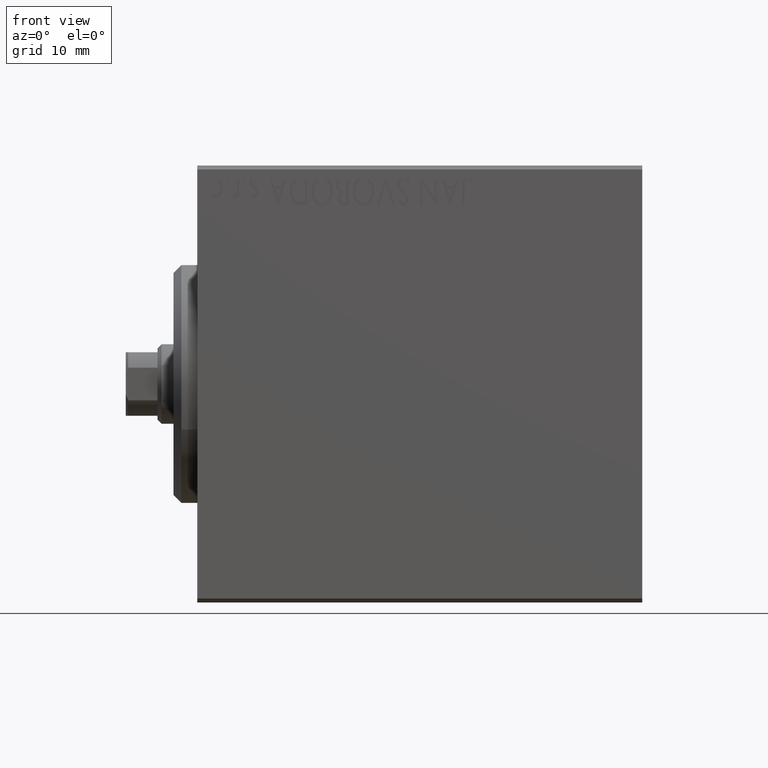
[diagram: clean part render]
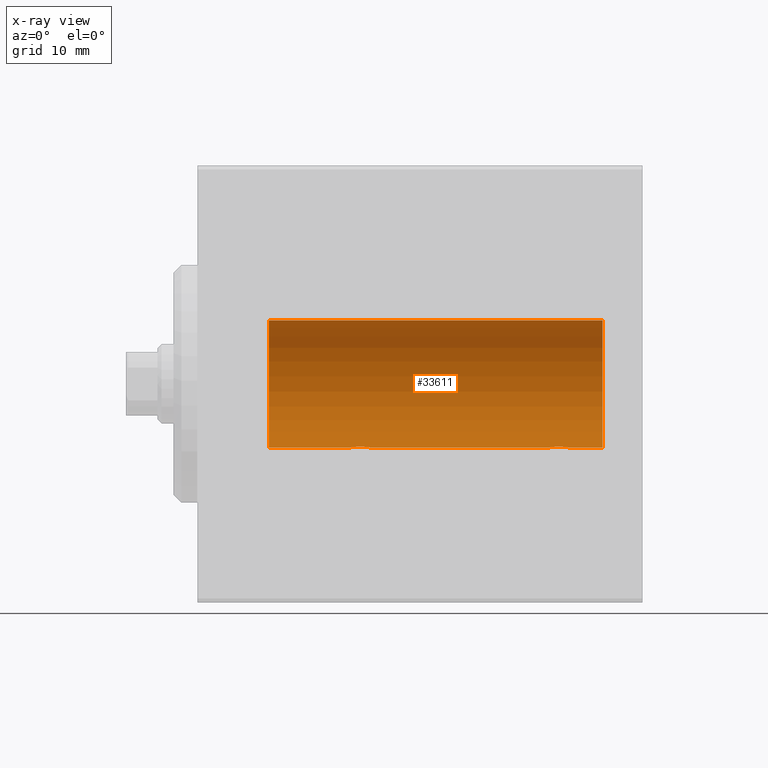
[diagram: x-ray — body ghosted, one internal face saturated and labeled with its STEP entity id]
A machine part, front view, then the same camera in x-ray: the body is ghosted and one INTERNAL B-rep face — a face not visible from any outside direction — is saturated and labeled: STEP entity #33611.
In plain terms, the highlighted cylindrical surface (partial cylindrical patch) has radius 8 mm, axis along (-1, -0, -0).
Its self-contained STEP definition (entity closure, byte-faithful):
#328 = CARTESIAN_POINT ( 'NONE',  ( 45.33619145091235225, 1.249938428426572656, -7.901750054830718462 ) ) ;
#430 = CARTESIAN_POINT ( 'NONE',  ( 19.25000000000000711, 0.1654536524217966875, -8.000000000000000000 ) ) ;
#540 = CARTESIAN_POINT ( 'NONE',  ( 46.74181525892407052, 0.1645871186493928495, -7.998709545350109806 ) ) ;
#633 = CARTESIAN_POINT ( 'NONE',  ( 21.75000000000000000, 0.08164616652084619175, -7.999999999999998224 ) ) ;
#756 = CARTESIAN_POINT ( 'NONE',  ( 44.87074834296262082, 1.092266057037466265, -7.925334523600929160 ) ) ;
#1555 = VECTOR ( 'NONE', #35651, 1000.000000000000000 ) ;
#2275 = ORIENTED_EDGE ( 'NONE', *, *, #21535, .T. ) ;
#2748 = CARTESIAN_POINT ( 'NONE',  ( 21.70976650520091411, 0.3250523954932730830, -7.993796610540221614 ) ) ;
#3039 = LINE ( 'NONE', #9726, #28447 ) ;
#3460 = CARTESIAN_POINT ( 'NONE',  ( 45.66417091690310315, 1.241868426634441969, -7.903038949453011774 ) ) ;
#3908 = CARTESIAN_POINT ( 'NONE',  ( 46.26739091610629373, 1.000368629246204399, -7.938072339095200824 ) ) ;
#4118 = CARTESIAN_POINT ( 'NONE',  ( 46.74999999999999289, 9.797173987957720246E-16, -7.999999999999998224 ) ) ;
#4563 = VECTOR ( 'NONE', #37835, 1000.000000000000000 ) ;
#5749 = CIRCLE ( 'NONE', #11424, 7.999999999999998224 ) ;
#6154 = EDGE_CURVE ( 'NONE', #6971, #37150, #3039, .T. ) ;
#6971 = VERTEX_POINT ( 'NONE', #14050 ) ;
#7335 = CARTESIAN_POINT ( 'NONE',  ( 20.90257413385907270, 1.186236229830388345, -7.911627449023368008 ) ) ;
#7460 = CARTESIAN_POINT ( 'NONE',  ( 45.58119849493557751, 1.250030652953401322, -7.901735465557271354 ) ) ;
#7622 = ORIENTED_EDGE ( 'NONE', *, *, #34062, .T. ) ;
#7809 = CARTESIAN_POINT ( 'NONE',  ( 9.000000000000001776, 9.797174393178823685E-16, -7.999999999999998224 ) ) ;
#8467 = LINE ( 'NONE', #16054, #1555 ) ;
#8567 = EDGE_CURVE ( 'NONE', #39946, #39844, #5749, .T. ) ;
#9416 = EDGE_CURVE ( 'NONE', #6971, #23213, #34978, .T. ) ;
#9726 = CARTESIAN_POINT ( 'NONE',  ( 51.00000000000000000, 9.797174393178823685E-16, -7.999999999999998224 ) ) ;
#10362 = CARTESIAN_POINT ( 'NONE',  ( 44.73146701955094784, 0.9991832710565826670, -7.938201675418733672 ) ) ;
#10558 = CARTESIAN_POINT ( 'NONE',  ( 9.000000000000001776, 0.000000000000000000, 7.999999999999998224 ) ) ;
#10595 = ORIENTED_EDGE ( 'NONE', *, *, #42942, .F. ) ;
#10667 = CARTESIAN_POINT ( 'NONE',  ( 20.58119849493555620, 1.250030652953401988, -7.901735465557267801 ) ) ;
#10936 = AXIS2_PLACEMENT_3D ( 'NONE', #42269, #25799, #19576 ) ;
#11309 = LINE ( 'NONE', #24890, #4563 ) ;
#11401 = EDGE_LOOP ( 'NONE', ( #10595, #27473, #21251, #2275, #27133, #15378, #32382, #7622 ) ) ;
#11424 = AXIS2_PLACEMENT_3D ( 'NONE', #19184, #32765, #29412 ) ;
#11568 = EDGE_CURVE ( 'NONE', #39946, #16486, #8467, .T. ) ;
#12870 = CARTESIAN_POINT ( 'NONE',  ( 51.00000000000000000, 9.797174393178823685E-16, -7.999999999999998224 ) ) ;
#12923 = DIRECTION ( 'NONE',  ( 0.000000000000000000, 0.000000000000000000, 1.000000000000000000 ) ) ;
#12981 = CARTESIAN_POINT ( 'NONE',  ( 21.75000000000000355, 9.797173987965608855E-16, -7.999999999999998224 ) ) ;
#13701 = CARTESIAN_POINT ( 'NONE',  ( 45.17150130922779283, 1.217000984963200416, -7.907141142849010151 ) ) ;
#14024 = CARTESIAN_POINT ( 'NONE',  ( 19.40826977845302537, 0.6304521543648575754, -7.976560245937306171 ) ) ;
#14050 = CARTESIAN_POINT ( 'NONE',  ( 19.25000000000000711, -6.253246997522681077E-15, -7.999999999999998224 ) ) ;
#15194 = AXIS2_PLACEMENT_3D ( 'NONE', #41337, #20460, #12923 ) ;
#15378 = ORIENTED_EDGE ( 'NONE', *, *, #9416, .T. ) ;
#16054 = CARTESIAN_POINT ( 'NONE',  ( 51.00000000000000000, 0.000000000000000000, 7.999999999999998224 ) ) ;
#16486 = VERTEX_POINT ( 'NONE', #10558 ) ;
#16848 = CARTESIAN_POINT ( 'NONE',  ( 44.25000000000001421, 0.1654536524217962712, -8.000000000000000000 ) ) ;
#17014 = B_SPLINE_CURVE_WITH_KNOTS ( 'NONE', 3,
 ( #20418, #16848, #30852, #34640, #34412, #10362, #756, #13701, #328, #7460, #3460, #41289, #23948, #34192, #3908, #17501, #27061, #31075, #38189, #540, #33762, #4118 ),
 .UNSPECIFIED., .F., .F.,
 ( 4, 2, 2, 2, 2, 2, 2, 2, 2, 2, 4 ),
 ( 7.505074081152076538E-19, 0.0004892585179630999388, 0.0009785170359261990101, 0.001467775553889298082, 0.001957034071852397587, 0.002201663330833957422, 0.002446292589815517258, 0.002935551107778656445, 0.003424809625741795632, 0.003669438884723368911, 0.003914068143704942625 ),
 .UNSPECIFIED. ) ;
#17357 = CIRCLE ( 'NONE', #10936, 7.999999999999998224 ) ;
#17376 = CARTESIAN_POINT ( 'NONE',  ( 19.25000000000000711, -6.253246997522681077E-15, -7.999999999999998224 ) ) ;
#17501 = CARTESIAN_POINT ( 'NONE',  ( 46.50031982237067751, 0.7674545364220052290, -7.963965305651049320 ) ) ;
#17594 = CARTESIAN_POINT ( 'NONE',  ( 21.50031982237068107, 0.7674545364220053401, -7.963965305651049320 ) ) ;
#18385 = VERTEX_POINT ( 'NONE', #25863 ) ;
#19184 = CARTESIAN_POINT ( 'NONE',  ( 51.00000000000000000, 0.000000000000000000, 0.000000000000000000 ) ) ;
#19576 = DIRECTION ( 'NONE',  ( 0.000000000000000000, 0.000000000000000000, 1.000000000000000000 ) ) ;
#20418 = CARTESIAN_POINT ( 'NONE',  ( 44.25000000000000711, -6.574401834785964054E-15, -7.999999999999998224 ) ) ;
#20460 = DIRECTION ( 'NONE',  ( -1.000000000000000000, -0.000000000000000000, -0.000000000000000000 ) ) ;
#21159 = CARTESIAN_POINT ( 'NONE',  ( 21.68608944587722576, 0.4029817482954558550, -7.990203133273719338 ) ) ;
#21251 = ORIENTED_EDGE ( 'NONE', *, *, #11568, .T. ) ;
#21535 = EDGE_CURVE ( 'NONE', #16486, #37150, #17357, .T. ) ;
#21738 = VECTOR ( 'NONE', #43828, 1000.000000000000000 ) ;
#23099 = EDGE_CURVE ( 'NONE', #18385, #23213, #11309, .T. ) ;
#23213 = VERTEX_POINT ( 'NONE', #40844 ) ;
#23948 = CARTESIAN_POINT ( 'NONE',  ( 45.90257413385905494, 1.186236229830389455, -7.911627449023362679 ) ) ;
#24259 = CARTESIAN_POINT ( 'NONE',  ( 20.82459038316880395, 1.209888574283866758, -7.907997942808293601 ) ) ;
#24890 = CARTESIAN_POINT ( 'NONE',  ( 51.00000000000000000, 9.797174393178823685E-16, -7.999999999999998224 ) ) ;
#25799 = DIRECTION ( 'NONE',  ( -1.000000000000000000, 0.000000000000000000, 0.000000000000000000 ) ) ;
#25863 = CARTESIAN_POINT ( 'NONE',  ( 44.25000000000000711, -6.574401834785964054E-15, -7.999999999999998224 ) ) ;
#26894 = LINE ( 'NONE', #12870, #21738 ) ;
#27061 = CARTESIAN_POINT ( 'NONE',  ( 46.59204967621045057, 0.6298709050361936956, -7.976604806854522778 ) ) ;
#27133 = ORIENTED_EDGE ( 'NONE', *, *, #6154, .F. ) ;
#27388 = CARTESIAN_POINT ( 'NONE',  ( 20.33619145091235936, 1.249938428426572656, -7.901750054830717573 ) ) ;
#27473 = ORIENTED_EDGE ( 'NONE', *, *, #8567, .F. ) ;
#27599 = CARTESIAN_POINT ( 'NONE',  ( 19.50115498801909197, 0.7689725568822818325, -7.963798983873345172 ) ) ;
#28168 = VERTEX_POINT ( 'NONE', #35653 ) ;
#28447 = VECTOR ( 'NONE', #30212, 1000.000000000000000 ) ;
#29412 = DIRECTION ( 'NONE',  ( 0.000000000000000000, 0.000000000000000000, 1.000000000000000000 ) ) ;
#30212 = DIRECTION ( 'NONE',  ( -1.000000000000000000, -0.000000000000000000, -0.000000000000000000 ) ) ;
#30732 = CARTESIAN_POINT ( 'NONE',  ( 21.59204967621043991, 0.6298709050361920303, -7.976604806854521001 ) ) ;
#30852 = CARTESIAN_POINT ( 'NONE',  ( 44.28266791658455759, 0.3277916934117462988, -7.994719249713585718 ) ) ;
#31075 = CARTESIAN_POINT ( 'NONE',  ( 46.68608944587722220, 0.4029817482954573538, -7.990203133273721114 ) ) ;
#31336 = FACE_OUTER_BOUND ( 'NONE', #11401, .T. ) ;
#32382 = ORIENTED_EDGE ( 'NONE', *, *, #23099, .F. ) ;
#32765 = DIRECTION ( 'NONE',  ( -1.000000000000000000, 0.000000000000000000, 0.000000000000000000 ) ) ;
#33611 = ADVANCED_FACE ( 'NONE', ( #31336 ), #37371, .F. ) ;
#33762 = CARTESIAN_POINT ( 'NONE',  ( 46.75000000000000000, 0.08164616652084634441, -8.000000000000000000 ) ) ;
#34062 = EDGE_CURVE ( 'NONE', #18385, #28168, #17014, .T. ) ;
#34192 = CARTESIAN_POINT ( 'NONE',  ( 46.12982270639373183, 1.092113850918999818, -7.925358570881163800 ) ) ;
#34412 = CARTESIAN_POINT ( 'NONE',  ( 44.50115498801908842, 0.7689725568822843860, -7.963798983873343396 ) ) ;
#34525 = CARTESIAN_POINT ( 'NONE',  ( 21.26739091610630084, 1.000368629246204399, -7.938072339095202601 ) ) ;
#34640 = CARTESIAN_POINT ( 'NONE',  ( 44.40826977845300405, 0.6304521543648577975, -7.976560245937304394 ) ) ;
#34978 = B_SPLINE_CURVE_WITH_KNOTS ( 'NONE', 3,
 ( #17376, #430, #36822, #14024, #27599, #41169, #37849, #37635, #27388, #10667, #41613, #24259, #7335, #41385, #34525, #17594, #30732, #21159, #2748, #40148, #633, #12981 ),
 .UNSPECIFIED., .F., .F.,
 ( 4, 2, 2, 2, 2, 2, 2, 2, 2, 2, 4 ),
 ( 4.384776375612755932E-19, 0.0004892585179631271522, 0.0009785170359262538708, 0.001467775553889380698, 0.001957034071852507308, 0.002201663330834065842, 0.002446292589815623510, 0.002935551107778730170, 0.003424809625741835964, 0.003669438884723391463, 0.003914068143704946962 ),
 .UNSPECIFIED. ) ;
#35651 = DIRECTION ( 'NONE',  ( -1.000000000000000000, -0.000000000000000000, -0.000000000000000000 ) ) ;
#35653 = CARTESIAN_POINT ( 'NONE',  ( 46.74999999999999289, 9.797173987957720246E-16, -7.999999999999998224 ) ) ;
#36822 = CARTESIAN_POINT ( 'NONE',  ( 19.28266791658456825, 0.3277916934117463543, -7.994719249713585718 ) ) ;
#37150 = VERTEX_POINT ( 'NONE', #7809 ) ;
#37371 = CYLINDRICAL_SURFACE ( 'NONE', #15194, 7.999999999999998224 ) ;
#37635 = CARTESIAN_POINT ( 'NONE',  ( 20.17150130922778573, 1.217000984963200860, -7.907141142849008375 ) ) ;
#37835 = DIRECTION ( 'NONE',  ( -1.000000000000000000, -0.000000000000000000, -0.000000000000000000 ) ) ;
#37849 = CARTESIAN_POINT ( 'NONE',  ( 19.87074834296262438, 1.092266057037466487, -7.925334523600932712 ) ) ;
#38189 = CARTESIAN_POINT ( 'NONE',  ( 46.70976650520091766, 0.3250523954932729165, -7.993796610540221614 ) ) ;
#39844 = VERTEX_POINT ( 'NONE', #42309 ) ;
#39946 = VERTEX_POINT ( 'NONE', #41751 ) ;
#40148 = CARTESIAN_POINT ( 'NONE',  ( 21.74181525892405986, 0.1645871186493928773, -7.998709545350109806 ) ) ;
#40844 = CARTESIAN_POINT ( 'NONE',  ( 21.75000000000000355, 9.797173987965608855E-16, -7.999999999999998224 ) ) ;
#41169 = CARTESIAN_POINT ( 'NONE',  ( 19.73146701955095494, 0.9991832710565806686, -7.938201675418735448 ) ) ;
#41289 = CARTESIAN_POINT ( 'NONE',  ( 45.82459038316879685, 1.209888574283866980, -7.907997942808293601 ) ) ;
#41337 = CARTESIAN_POINT ( 'NONE',  ( 51.00000000000000000, 0.000000000000000000, 0.000000000000000000 ) ) ;
#41385 = CARTESIAN_POINT ( 'NONE',  ( 21.12982270639374605, 1.092113850918997153, -7.925358570881165576 ) ) ;
#41613 = CARTESIAN_POINT ( 'NONE',  ( 20.66417091690312091, 1.241868426634441747, -7.903038949453011774 ) ) ;
#41751 = CARTESIAN_POINT ( 'NONE',  ( 51.00000000000000000, 0.000000000000000000, 7.999999999999998224 ) ) ;
#42269 = CARTESIAN_POINT ( 'NONE',  ( 9.000000000000001776, 0.000000000000000000, 0.000000000000000000 ) ) ;
#42309 = CARTESIAN_POINT ( 'NONE',  ( 51.00000000000000000, 9.797174393178823685E-16, -7.999999999999998224 ) ) ;
#42942 = EDGE_CURVE ( 'NONE', #39844, #28168, #26894, .T. ) ;
#43828 = DIRECTION ( 'NONE',  ( -1.000000000000000000, -0.000000000000000000, -0.000000000000000000 ) ) ;